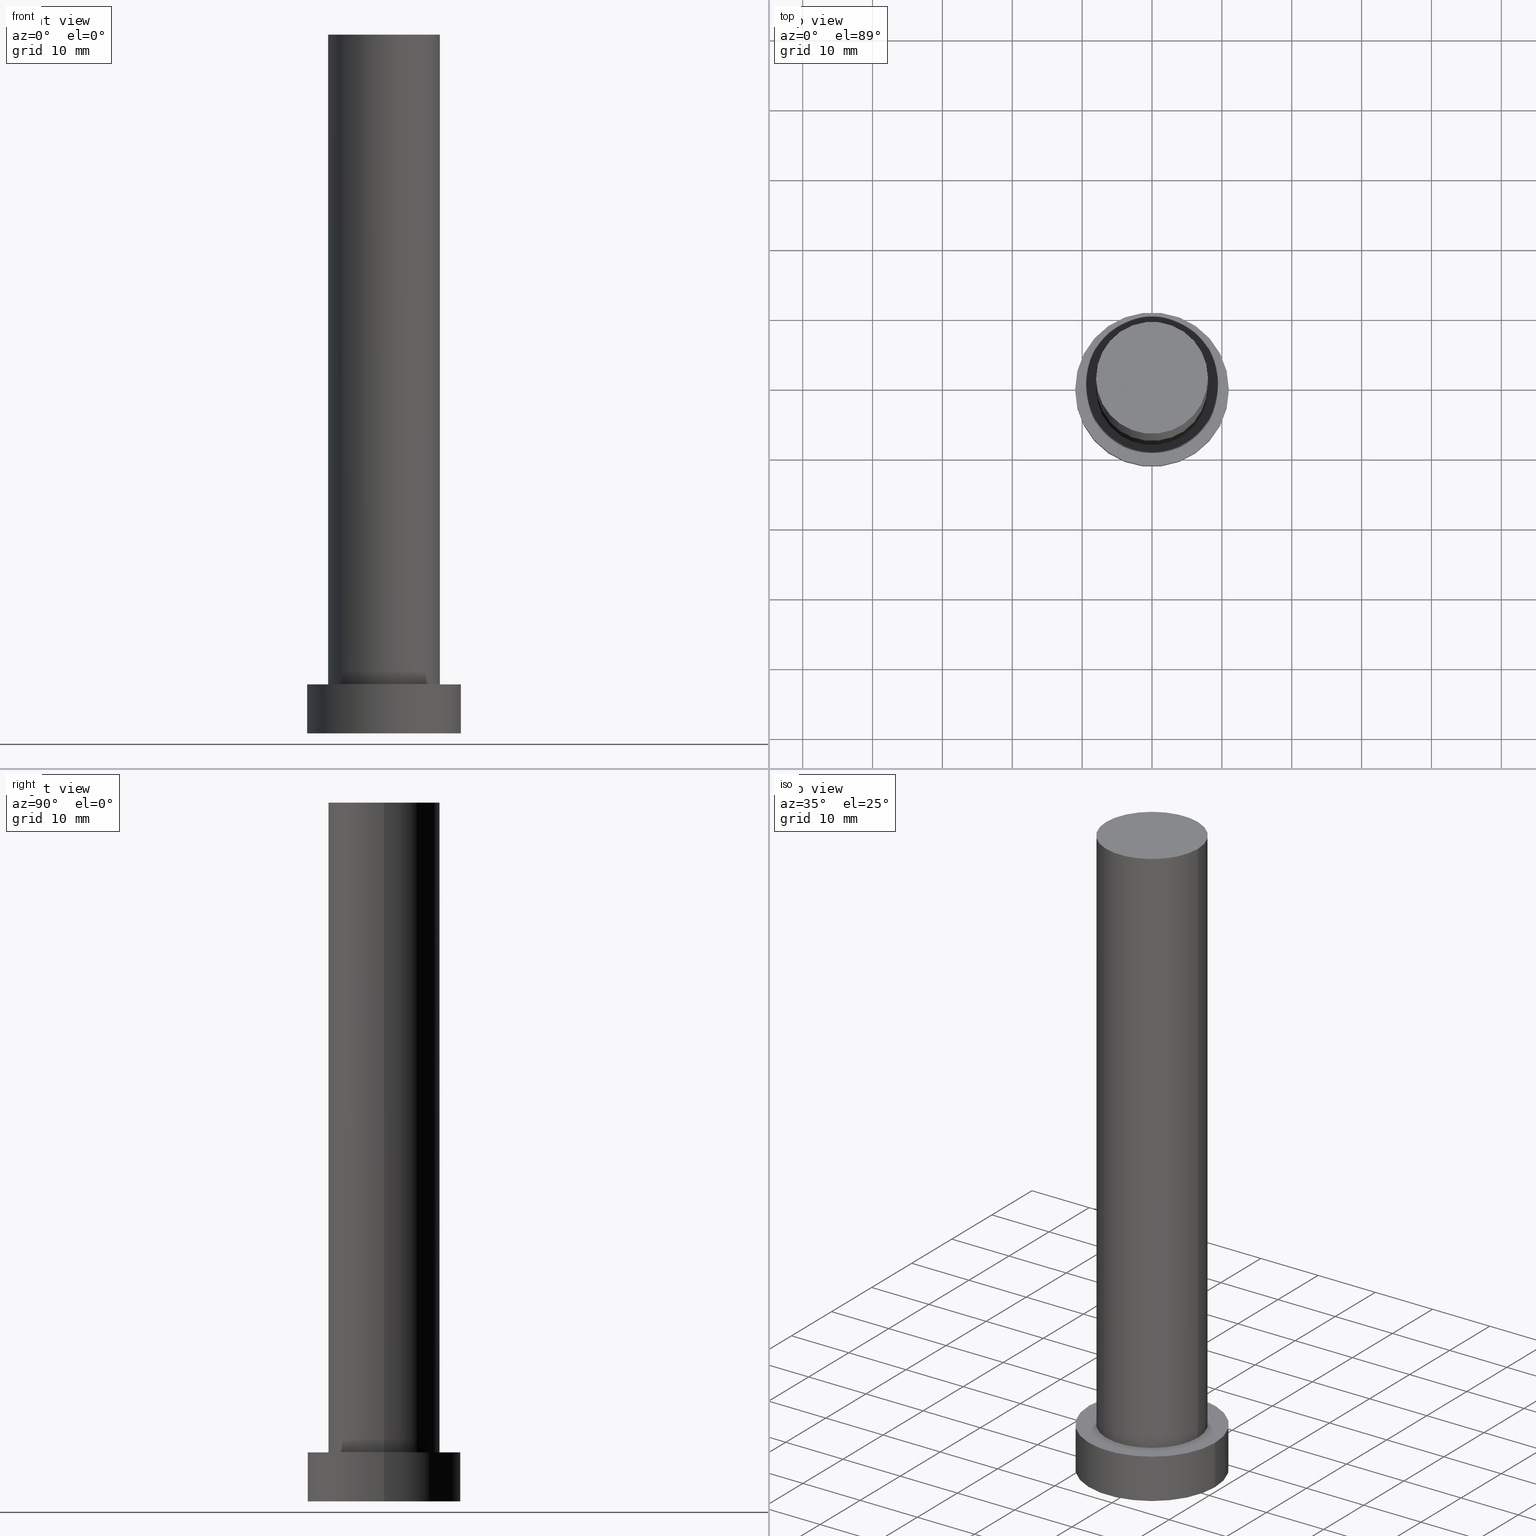
[diagram: canonical four-view strip — front | top / right | iso, engineering-drawing reading convention]
A machine part, canonical four-view strip (front | top / right | iso — engineering-drawing reading convention). The complete STEP part file that produces these views, byte-faithful:
ISO-10303-21;
HEADER;
FILE_DESCRIPTION (( 'STEP AP203' ),
    '1' );
FILE_NAME ('23c8.STEP',
    '2023-02-13T09:21:49',
    ( '' ),
    ( '' ),
    'SwSTEP 2.0',
    'SolidWorks 2019',
    '' );
FILE_SCHEMA (( 'CONFIG_CONTROL_DESIGN' ));
ENDSEC;

DATA;
#1 = PERSON_AND_ORGANIZATION ( #124, #93 ) ;
#2 = CARTESIAN_POINT ( 'NONE',  ( 11.00000000000000000, 1.347111479062088405E-15, 7.000000000000000000 ) ) ;
#3 = ADVANCED_FACE ( 'NONE', ( #222 ), #41, .F. ) ;
#4 = LOCAL_TIME ( 10, 21, 49.00000000000000000, #250 ) ;
#5 = APPROVAL_PERSON_ORGANIZATION ( #128, #91, #166 ) ;
#6 = CARTESIAN_POINT ( 'NONE',  ( 0.000000000000000000, 0.000000000000000000, 0.000000000000000000 ) ) ;
#7 = EDGE_CURVE ( 'NONE', #224, #156, #43, .T. ) ;
#8 = DIRECTION ( 'NONE',  ( 0.000000000000000000, 0.000000000000000000, 1.000000000000000000 ) ) ;
#9 = DIRECTION ( 'NONE',  ( 1.000000000000000000, 0.000000000000000000, -0.000000000000000000 ) ) ;
#10 = CARTESIAN_POINT ( 'NONE',  ( 0.000000000000000000, 0.000000000000000000, 7.000000000000000000 ) ) ;
#11 = CARTESIAN_POINT ( 'NONE',  ( -11.00000000000000000, 0.000000000000000000, 7.000000000000000000 ) ) ;
#12 = AXIS2_PLACEMENT_3D ( 'NONE', #160, #121, #207 ) ;
#13 = CARTESIAN_POINT ( 'NONE',  ( 0.000000000000000000, 0.000000000000000000, 7.000000000000000000 ) ) ;
#14 = CALENDAR_DATE ( 2023, 13, 2 ) ;
#15 = ADVANCED_FACE ( 'NONE', ( #62 ), #142, .T. ) ;
#16 = APPROVAL_PERSON_ORGANIZATION ( #66, #241, #35 ) ;
#17 = EDGE_CURVE ( 'NONE', #147, #149, #126, .T. ) ;
#18 = DATE_AND_TIME ( #226, #29 ) ;
#19 = DIRECTION ( 'NONE',  ( 1.000000000000000000, 0.000000000000000000, 0.000000000000000000 ) ) ;
#20 = CIRCLE ( 'NONE', #167, 11.00000000000000000 ) ;
#21 = EDGE_CURVE ( 'NONE', #156, #220, #20, .T. ) ;
#22 = CARTESIAN_POINT ( 'NONE',  ( 0.000000000000000000, 0.000000000000000000, 7.000000000000000000 ) ) ;
#23 = VERTEX_POINT ( 'NONE', #58 ) ;
#24 = CYLINDRICAL_SURFACE ( 'NONE', #217, 11.00000000000000000 ) ;
#25 = EDGE_LOOP ( 'NONE', ( #200, #117 ) ) ;
#26 = CARTESIAN_POINT ( 'NONE',  ( -8.000000000000000000, 0.000000000000000000, 100.0000000000000000 ) ) ;
#27 = LOCAL_TIME ( 10, 21, 49.00000000000000000, #232 ) ;
#28 = EDGE_LOOP ( 'NONE', ( #249, #101 ) ) ;
#29 = LOCAL_TIME ( 10, 21, 49.00000000000000000, #32 ) ;
#30 =( LENGTH_UNIT ( ) NAMED_UNIT ( * ) SI_UNIT ( .MILLI., .METRE. ) );
#31 = COORDINATED_UNIVERSAL_TIME_OFFSET ( 1, 0, .AHEAD. ) ;
#32 = COORDINATED_UNIVERSAL_TIME_OFFSET ( 1, 0, .AHEAD. ) ;
#33 = AXIS2_PLACEMENT_3D ( 'NONE', #157, #8, #112 ) ;
#34 = APPROVAL_DATE_TIME ( #227, #91 ) ;
#35 = APPROVAL_ROLE ( '' ) ;
#36 = DIRECTION ( 'NONE',  ( 1.000000000000000000, 0.000000000000000000, 0.000000000000000000 ) ) ;
#37 = ADVANCED_FACE ( 'NONE', ( #188 ), #145, .T. ) ;
#38 = PERSON_AND_ORGANIZATION_ROLE ( 'design_owner' ) ;
#39 = FACE_OUTER_BOUND ( 'NONE', #223, .T. ) ;
#40 = ORIENTED_EDGE ( 'NONE', *, *, #17, .F. ) ;
#41 = PLANE ( 'NONE',  #96 ) ;
#42 = DIRECTION ( 'NONE',  ( 1.000000000000000000, 0.000000000000000000, -0.000000000000000000 ) ) ;
#43 = LINE ( 'NONE', #47, #111 ) ;
#44 = FACE_OUTER_BOUND ( 'NONE', #239, .T. ) ;
#45 = DATE_AND_TIME ( #163, #27 ) ;
#46 = CARTESIAN_POINT ( 'NONE',  ( 8.000000000000000000, 9.797174393178823685E-16, 100.0000000000000000 ) ) ;
#47 = CARTESIAN_POINT ( 'NONE',  ( 11.00000000000000000, 1.347111479062088405E-15, 7.000000000000000000 ) ) ;
#48 = EDGE_CURVE ( 'NONE', #149, #162, #229, .T. ) ;
#49 = PERSON_AND_ORGANIZATION ( #124, #93 ) ;
#50 = DIRECTION ( 'NONE',  ( 0.000000000000000000, 0.000000000000000000, 1.000000000000000000 ) ) ;
#51 = APPROVAL_STATUS ( 'not_yet_approved' ) ;
#52 = DIRECTION ( 'NONE',  ( -1.000000000000000000, 0.000000000000000000, 0.000000000000000000 ) ) ;
#53 = CIRCLE ( 'NONE', #12, 8.000000000000000000 ) ;
#54 = LINE ( 'NONE', #186, #82 ) ;
#55 = CC_DESIGN_PERSON_AND_ORGANIZATION_ASSIGNMENT ( #97, #102, ( #125 ) ) ;
#56 = CIRCLE ( 'NONE', #141, 8.000000000000000000 ) ;
#57 = SECURITY_CLASSIFICATION_LEVEL ( 'unclassified' ) ;
#58 = CARTESIAN_POINT ( 'NONE',  ( -11.00000000000000000, 0.000000000000000000, 7.000000000000000000 ) ) ;
#59 = LOCAL_TIME ( 10, 21, 49.00000000000000000, #139 ) ;
#60 = EDGE_LOOP ( 'NONE', ( #238, #178, #137, #130 ) ) ;
#61 = DIRECTION ( 'NONE',  ( 1.000000000000000000, 0.000000000000000000, 0.000000000000000000 ) ) ;
#62 = FACE_OUTER_BOUND ( 'NONE', #225, .T. ) ;
#63 = EDGE_CURVE ( 'NONE', #147, #80, #53, .T. ) ;
#64 = CARTESIAN_POINT ( 'NONE',  ( 0.000000000000000000, 0.000000000000000000, 100.0000000000000000 ) ) ;
#65 = DIRECTION ( 'NONE',  ( 0.000000000000000000, 0.000000000000000000, 1.000000000000000000 ) ) ;
#66 = PERSON_AND_ORGANIZATION ( #124, #93 ) ;
#67 = AXIS2_PLACEMENT_3D ( 'NONE', #72, #104, #94 ) ;
#68 = CARTESIAN_POINT ( 'NONE',  ( 0.000000000000000000, 0.000000000000000000, 0.000000000000000000 ) ) ;
#69 = PERSON_AND_ORGANIZATION_ROLE ( 'classification_officer' ) ;
#70 = APPLICATION_PROTOCOL_DEFINITION ( 'international standard', 'config_control_design', 1994, #177 ) ;
#71 = CIRCLE ( 'NONE', #221, 8.000000000000000000 ) ;
#72 = CARTESIAN_POINT ( 'NONE',  ( 0.000000000000000000, 0.000000000000000000, 100.0000000000000000 ) ) ;
#73 = PERSON_AND_ORGANIZATION ( #124, #93 ) ;
#74 = EDGE_LOOP ( 'NONE', ( #78, #203, #154, #40 ) ) ;
#75 = CARTESIAN_POINT ( 'NONE',  ( 0.000000000000000000, 0.000000000000000000, 7.000000000000000000 ) ) ;
#76 = APPROVAL_ROLE ( '' ) ;
#77 = DIRECTION ( 'NONE',  ( 0.000000000000000000, 0.000000000000000000, 1.000000000000000000 ) ) ;
#78 = ORIENTED_EDGE ( 'NONE', *, *, #161, .F. ) ;
#79 = AXIS2_PLACEMENT_3D ( 'NONE', #205, #185, #165 ) ;
#80 = VERTEX_POINT ( 'NONE', #46 ) ;
#81 = EDGE_CURVE ( 'NONE', #162, #149, #56, .T. ) ;
#82 = VECTOR ( 'NONE', #209, 1000.000000000000000 ) ;
#83 = CC_DESIGN_APPROVAL ( #132, ( #246 ) ) ;
#84 = LOCAL_TIME ( 10, 21, 49.00000000000000000, #31 ) ;
#85 = PLANE ( 'NONE',  #212 ) ;
#86 = ADVANCED_BREP_SHAPE_REPRESENTATION ( '23c8', ( #216, #114 ), #172 ) ;
#87 = APPROVAL_DATE_TIME ( #92, #132 ) ;
#88 = PRODUCT_DEFINITION_SHAPE ( 'NONE', 'NONE',  #125 ) ;
#89 = ORIENTED_EDGE ( 'NONE', *, *, #99, .F. ) ;
#90 = FACE_OUTER_BOUND ( 'NONE', #60, .T. ) ;
#91 = APPROVAL ( #150, 'NEUR�EN�' ) ;
#92 = DATE_AND_TIME ( #118, #59 ) ;
#93 = ORGANIZATION ( 'NEUR�EN�', 'NEUR�EN�', '' ) ;
#94 = DIRECTION ( 'NONE',  ( -1.000000000000000000, 0.000000000000000000, 0.000000000000000000 ) ) ;
#95 = ORIENTED_EDGE ( 'NONE', *, *, #48, .T. ) ;
#96 = AXIS2_PLACEMENT_3D ( 'NONE', #108, #174, #9 ) ;
#97 = PERSON_AND_ORGANIZATION ( #124, #93 ) ;
#98 = DIRECTION ( 'NONE',  ( 1.000000000000000000, 0.000000000000000000, 0.000000000000000000 ) ) ;
#99 = EDGE_CURVE ( 'NONE', #23, #224, #152, .T. ) ;
#100 = APPLICATION_PROTOCOL_DEFINITION ( 'international standard', 'config_control_design', 1994, #231 ) ;
#101 = ORIENTED_EDGE ( 'NONE', *, *, #81, .F. ) ;
#102 = PERSON_AND_ORGANIZATION_ROLE ( 'creator' ) ;
#103 = VECTOR ( 'NONE', #190, 1000.000000000000000 ) ;
#104 = DIRECTION ( 'NONE',  ( -0.000000000000000000, -0.000000000000000000, -1.000000000000000000 ) ) ;
#105 = CC_DESIGN_PERSON_AND_ORGANIZATION_ASSIGNMENT ( #1, #69, ( #246 ) ) ;
#106 = CARTESIAN_POINT ( 'NONE',  ( 11.00000000000000000, 1.347111479062088405E-15, 0.000000000000000000 ) ) ;
#107 = ORIENTED_EDGE ( 'NONE', *, *, #136, .T. ) ;
#108 = CARTESIAN_POINT ( 'NONE',  ( 0.000000000000000000, 0.000000000000000000, 0.000000000000000000 ) ) ;
#109 = EDGE_CURVE ( 'NONE', #23, #220, #182, .T. ) ;
#110 = ORIENTED_EDGE ( 'NONE', *, *, #17, .T. ) ;
#111 = VECTOR ( 'NONE', #244, 1000.000000000000000 ) ;
#112 = DIRECTION ( 'NONE',  ( 1.000000000000000000, 0.000000000000000000, 0.000000000000000000 ) ) ;
#113 = PLANE ( 'NONE',  #201 ) ;
#114 = AXIS2_PLACEMENT_3D ( 'NONE', #6, #214, #19 ) ;
#115 = ORIENTED_EDGE ( 'NONE', *, *, #63, .T. ) ;
#116 = DIRECTION ( 'NONE',  ( -0.000000000000000000, -0.000000000000000000, -1.000000000000000000 ) ) ;
#117 = ORIENTED_EDGE ( 'NONE', *, *, #21, .F. ) ;
#118 = CALENDAR_DATE ( 2023, 13, 2 ) ;
#119 = VECTOR ( 'NONE', #116, 1000.000000000000000 ) ;
#120 = ADVANCED_FACE ( 'NONE', ( #194 ), #169, .T. ) ;
#121 = DIRECTION ( 'NONE',  ( 0.000000000000000000, 0.000000000000000000, 1.000000000000000000 ) ) ;
#122 = CARTESIAN_POINT ( 'NONE',  ( 0.000000000000000000, 0.000000000000000000, 7.000000000000000000 ) ) ;
#123 = ORIENTED_EDGE ( 'NONE', *, *, #179, .T. ) ;
#124 = PERSON ( 'NEUR�EN�', 'NEUR�EN�', 'NEUR�EN�', ('NEUR�EN�'), ('NEUR�EN�'), ('NEUR�EN�') ) ;
#125 = PRODUCT_DEFINITION ( 'NEZN�M�', '', #131, #236 ) ;
#126 = LINE ( 'NONE', #211, #103 ) ;
#127 = DIRECTION ( 'NONE',  ( 0.000000000000000000, 0.000000000000000000, 1.000000000000000000 ) ) ;
#128 = PERSON_AND_ORGANIZATION ( #124, #93 ) ;
#129 = CC_DESIGN_SECURITY_CLASSIFICATION ( #246, ( #131 ) ) ;
#130 = ORIENTED_EDGE ( 'NONE', *, *, #109, .F. ) ;
#131 = PRODUCT_DEFINITION_FORMATION_WITH_SPECIFIED_SOURCE ( 'LIBOVOLN�', '', #138, .NOT_KNOWN. ) ;
#132 = APPROVAL ( #51, 'NEUR�EN�' ) ;
#133 = ORIENTED_EDGE ( 'NONE', *, *, #63, .F. ) ;
#134 = CARTESIAN_POINT ( 'NONE',  ( 0.000000000000000000, 0.000000000000000000, 100.0000000000000000 ) ) ;
#135 = CARTESIAN_POINT ( 'NONE',  ( -8.000000000000000000, 0.000000000000000000, 7.000000000000000000 ) ) ;
#136 = EDGE_CURVE ( 'NONE', #220, #156, #176, .T. ) ;
#137 = ORIENTED_EDGE ( 'NONE', *, *, #21, .T. ) ;
#138 = PRODUCT ( '23c8', '23c8', '', ( #196 ) ) ;
#139 = COORDINATED_UNIVERSAL_TIME_OFFSET ( 1, 0, .AHEAD. ) ;
#140 = DIRECTION ( 'NONE',  ( -0.000000000000000000, -0.000000000000000000, -1.000000000000000000 ) ) ;
#141 = AXIS2_PLACEMENT_3D ( 'NONE', #10, #50, #98 ) ;
#142 = CYLINDRICAL_SURFACE ( 'NONE', #206, 11.00000000000000000 ) ;
#143 = ORIENTED_EDGE ( 'NONE', *, *, #99, .T. ) ;
#144 = DIRECTION ( 'NONE',  ( 0.000000000000000000, 0.000000000000000000, 1.000000000000000000 ) ) ;
#145 = CYLINDRICAL_SURFACE ( 'NONE', #79, 8.000000000000000000 ) ;
#146 = APPROVAL_STATUS ( 'not_yet_approved' ) ;
#147 = VERTEX_POINT ( 'NONE', #26 ) ;
#148 = UNCERTAINTY_MEASURE_WITH_UNIT (LENGTH_MEASURE( 1.000000000000000082E-05 ), #30, 'distance_accuracy_value', 'NONE');
#149 = VERTEX_POINT ( 'NONE', #135 ) ;
#150 = APPROVAL_STATUS ( 'not_yet_approved' ) ;
#151 =( NAMED_UNIT ( * ) PLANE_ANGLE_UNIT ( ) SI_UNIT ( $, .RADIAN. ) );
#152 = CIRCLE ( 'NONE', #255, 11.00000000000000000 ) ;
#153 = PRODUCT_RELATED_PRODUCT_CATEGORY ( 'detail', '', ( #138 ) ) ;
#154 = ORIENTED_EDGE ( 'NONE', *, *, #81, .T. ) ;
#155 = DIRECTION ( 'NONE',  ( 0.000000000000000000, 0.000000000000000000, 1.000000000000000000 ) ) ;
#156 = VERTEX_POINT ( 'NONE', #106 ) ;
#157 = CARTESIAN_POINT ( 'NONE',  ( 0.000000000000000000, 0.000000000000000000, 0.000000000000000000 ) ) ;
#158 = AXIS2_PLACEMENT_3D ( 'NONE', #13, #77, #61 ) ;
#159 = ORIENTED_EDGE ( 'NONE', *, *, #253, .F. ) ;
#160 = CARTESIAN_POINT ( 'NONE',  ( 0.000000000000000000, 0.000000000000000000, 100.0000000000000000 ) ) ;
#161 = EDGE_CURVE ( 'NONE', #80, #147, #71, .T. ) ;
#162 = VERTEX_POINT ( 'NONE', #219 ) ;
#163 = CALENDAR_DATE ( 2023, 13, 2 ) ;
#164 = DATE_AND_TIME ( #14, #84 ) ;
#165 = DIRECTION ( 'NONE',  ( -1.000000000000000000, 0.000000000000000000, 0.000000000000000000 ) ) ;
#166 = APPROVAL_ROLE ( '' ) ;
#167 = AXIS2_PLACEMENT_3D ( 'NONE', #68, #155, #240 ) ;
#168 = CIRCLE ( 'NONE', #198, 11.00000000000000000 ) ;
#169 = CYLINDRICAL_SURFACE ( 'NONE', #67, 8.000000000000000000 ) ;
#170 = ADVANCED_FACE ( 'NONE', ( #39 ), #85, .T. ) ;
#171 = DIRECTION ( 'NONE',  ( -0.000000000000000000, -0.000000000000000000, -1.000000000000000000 ) ) ;
#172 =( GEOMETRIC_REPRESENTATION_CONTEXT ( 3 ) GLOBAL_UNCERTAINTY_ASSIGNED_CONTEXT ( ( #148 ) ) GLOBAL_UNIT_ASSIGNED_CONTEXT ( ( #30, #151, #213 ) ) REPRESENTATION_CONTEXT ( 'NONE', 'WORKASPACE' ) );
#173 = CC_DESIGN_DATE_AND_TIME_ASSIGNMENT ( #164, #248, ( #125 ) ) ;
#174 = DIRECTION ( 'NONE',  ( 0.000000000000000000, 0.000000000000000000, 1.000000000000000000 ) ) ;
#175 = FACE_BOUND ( 'NONE', #28, .T. ) ;
#176 = CIRCLE ( 'NONE', #33, 11.00000000000000000 ) ;
#177 = APPLICATION_CONTEXT ( 'configuration controlled 3d designs of mechanical parts and assemblies' ) ;
#178 = ORIENTED_EDGE ( 'NONE', *, *, #7, .T. ) ;
#179 = EDGE_CURVE ( 'NONE', #224, #23, #168, .T. ) ;
#180 = DIRECTION ( 'NONE',  ( 0.000000000000000000, 0.000000000000000000, 1.000000000000000000 ) ) ;
#181 = ORIENTED_EDGE ( 'NONE', *, *, #161, .T. ) ;
#182 = LINE ( 'NONE', #11, #119 ) ;
#183 = CARTESIAN_POINT ( 'NONE',  ( 0.000000000000000000, 0.000000000000000000, 7.000000000000000000 ) ) ;
#184 = EDGE_LOOP ( 'NONE', ( #159, #133, #110, #95 ) ) ;
#185 = DIRECTION ( 'NONE',  ( -0.000000000000000000, -0.000000000000000000, -1.000000000000000000 ) ) ;
#186 = CARTESIAN_POINT ( 'NONE',  ( 8.000000000000000000, 9.797174393178823685E-16, 100.0000000000000000 ) ) ;
#187 = ADVANCED_FACE ( 'NONE', ( #90 ), #24, .T. ) ;
#188 = FACE_OUTER_BOUND ( 'NONE', #74, .T. ) ;
#189 = DIRECTION ( 'NONE',  ( 0.000000000000000000, 0.000000000000000000, 1.000000000000000000 ) ) ;
#190 = DIRECTION ( 'NONE',  ( -0.000000000000000000, -0.000000000000000000, -1.000000000000000000 ) ) ;
#191 = APPROVAL_PERSON_ORGANIZATION ( #49, #132, #76 ) ;
#192 = SHAPE_DEFINITION_REPRESENTATION ( #88, #86 ) ;
#193 = APPROVAL_DATE_TIME ( #18, #241 ) ;
#194 = FACE_OUTER_BOUND ( 'NONE', #184, .T. ) ;
#195 = ADVANCED_FACE ( 'NONE', ( #175, #44 ), #113, .T. ) ;
#196 = MECHANICAL_CONTEXT ( 'NONE', #177, 'mechanical' ) ;
#197 = PERSON_AND_ORGANIZATION ( #124, #93 ) ;
#198 = AXIS2_PLACEMENT_3D ( 'NONE', #183, #65, #243 ) ;
#199 = DIRECTION ( 'NONE',  ( -1.000000000000000000, 0.000000000000000000, 0.000000000000000000 ) ) ;
#200 = ORIENTED_EDGE ( 'NONE', *, *, #136, .F. ) ;
#201 = AXIS2_PLACEMENT_3D ( 'NONE', #122, #189, #210 ) ;
#202 = CC_DESIGN_PERSON_AND_ORGANIZATION_ASSIGNMENT ( #197, #235, ( #131 ) ) ;
#203 = ORIENTED_EDGE ( 'NONE', *, *, #253, .T. ) ;
#204 = ORIENTED_EDGE ( 'NONE', *, *, #109, .T. ) ;
#205 = CARTESIAN_POINT ( 'NONE',  ( 0.000000000000000000, 0.000000000000000000, 100.0000000000000000 ) ) ;
#206 = AXIS2_PLACEMENT_3D ( 'NONE', #22, #171, #52 ) ;
#207 = DIRECTION ( 'NONE',  ( 1.000000000000000000, 0.000000000000000000, 0.000000000000000000 ) ) ;
#208 = CC_DESIGN_APPROVAL ( #241, ( #131 ) ) ;
#209 = DIRECTION ( 'NONE',  ( -0.000000000000000000, -0.000000000000000000, -1.000000000000000000 ) ) ;
#210 = DIRECTION ( 'NONE',  ( 1.000000000000000000, 0.000000000000000000, -0.000000000000000000 ) ) ;
#211 = CARTESIAN_POINT ( 'NONE',  ( -8.000000000000000000, 0.000000000000000000, 100.0000000000000000 ) ) ;
#212 = AXIS2_PLACEMENT_3D ( 'NONE', #134, #180, #42 ) ;
#213 =( NAMED_UNIT ( * ) SI_UNIT ( $, .STERADIAN. ) SOLID_ANGLE_UNIT ( ) );
#214 = DIRECTION ( 'NONE',  ( 0.000000000000000000, 0.000000000000000000, 1.000000000000000000 ) ) ;
#215 = DIRECTION ( 'NONE',  ( 1.000000000000000000, 0.000000000000000000, 0.000000000000000000 ) ) ;
#216 = MANIFOLD_SOLID_BREP ( 'P�idat vysunut�m3', #245 ) ;
#217 = AXIS2_PLACEMENT_3D ( 'NONE', #75, #140, #199 ) ;
#218 = PERSON_AND_ORGANIZATION ( #124, #93 ) ;
#219 = CARTESIAN_POINT ( 'NONE',  ( 8.000000000000000000, 9.797174393178823685E-16, 7.000000000000000000 ) ) ;
#220 = VERTEX_POINT ( 'NONE', #254 ) ;
#221 = AXIS2_PLACEMENT_3D ( 'NONE', #64, #144, #36 ) ;
#222 = FACE_OUTER_BOUND ( 'NONE', #25, .T. ) ;
#223 = EDGE_LOOP ( 'NONE', ( #115, #181 ) ) ;
#224 = VERTEX_POINT ( 'NONE', #2 ) ;
#225 = EDGE_LOOP ( 'NONE', ( #242, #89, #204, #107 ) ) ;
#226 = CALENDAR_DATE ( 2023, 13, 2 ) ;
#227 = DATE_AND_TIME ( #251, #4 ) ;
#228 = CC_DESIGN_DATE_AND_TIME_ASSIGNMENT ( #45, #247, ( #246 ) ) ;
#229 = CIRCLE ( 'NONE', #158, 8.000000000000000000 ) ;
#230 = CARTESIAN_POINT ( 'NONE',  ( 0.000000000000000000, 0.000000000000000000, 7.000000000000000000 ) ) ;
#231 = APPLICATION_CONTEXT ( 'configuration controlled 3d designs of mechanical parts and assemblies' ) ;
#232 = COORDINATED_UNIVERSAL_TIME_OFFSET ( 1, 0, .AHEAD. ) ;
#233 = CC_DESIGN_PERSON_AND_ORGANIZATION_ASSIGNMENT ( #218, #38, ( #138 ) ) ;
#234 = PERSON_AND_ORGANIZATION_ROLE ( 'creator' ) ;
#235 = PERSON_AND_ORGANIZATION_ROLE ( 'design_supplier' ) ;
#236 = DESIGN_CONTEXT ( 'detailed design', #231, 'design' ) ;
#237 = CC_DESIGN_PERSON_AND_ORGANIZATION_ASSIGNMENT ( #73, #234, ( #131 ) ) ;
#238 = ORIENTED_EDGE ( 'NONE', *, *, #179, .F. ) ;
#239 = EDGE_LOOP ( 'NONE', ( #143, #123 ) ) ;
#240 = DIRECTION ( 'NONE',  ( 1.000000000000000000, 0.000000000000000000, 0.000000000000000000 ) ) ;
#241 = APPROVAL ( #146, 'NEUR�EN�' ) ;
#242 = ORIENTED_EDGE ( 'NONE', *, *, #7, .F. ) ;
#243 = DIRECTION ( 'NONE',  ( 1.000000000000000000, 0.000000000000000000, 0.000000000000000000 ) ) ;
#244 = DIRECTION ( 'NONE',  ( -0.000000000000000000, -0.000000000000000000, -1.000000000000000000 ) ) ;
#245 = CLOSED_SHELL ( 'NONE', ( #37, #187, #15, #195, #3, #120, #170 ) ) ;
#246 = SECURITY_CLASSIFICATION ( '', '', #57 ) ;
#247 = DATE_TIME_ROLE ( 'classification_date' ) ;
#248 = DATE_TIME_ROLE ( 'creation_date' ) ;
#249 = ORIENTED_EDGE ( 'NONE', *, *, #48, .F. ) ;
#250 = COORDINATED_UNIVERSAL_TIME_OFFSET ( 1, 0, .AHEAD. ) ;
#251 = CALENDAR_DATE ( 2023, 13, 2 ) ;
#252 = CC_DESIGN_APPROVAL ( #91, ( #125 ) ) ;
#253 = EDGE_CURVE ( 'NONE', #80, #162, #54, .T. ) ;
#254 = CARTESIAN_POINT ( 'NONE',  ( -11.00000000000000000, 0.000000000000000000, 0.000000000000000000 ) ) ;
#255 = AXIS2_PLACEMENT_3D ( 'NONE', #230, #127, #215 ) ;
ENDSEC;
END-ISO-10303-21;
